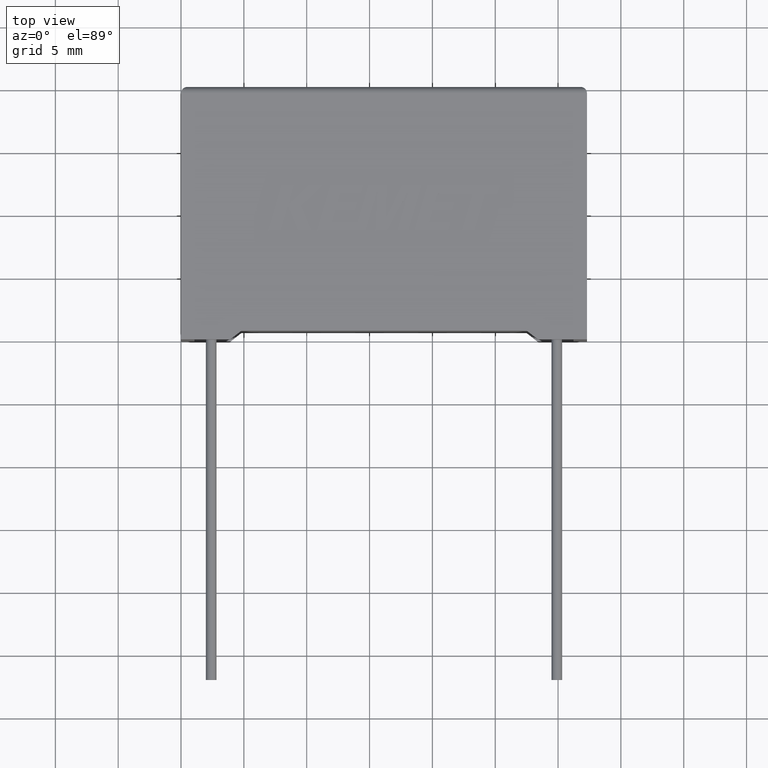
[diagram: clean part render]
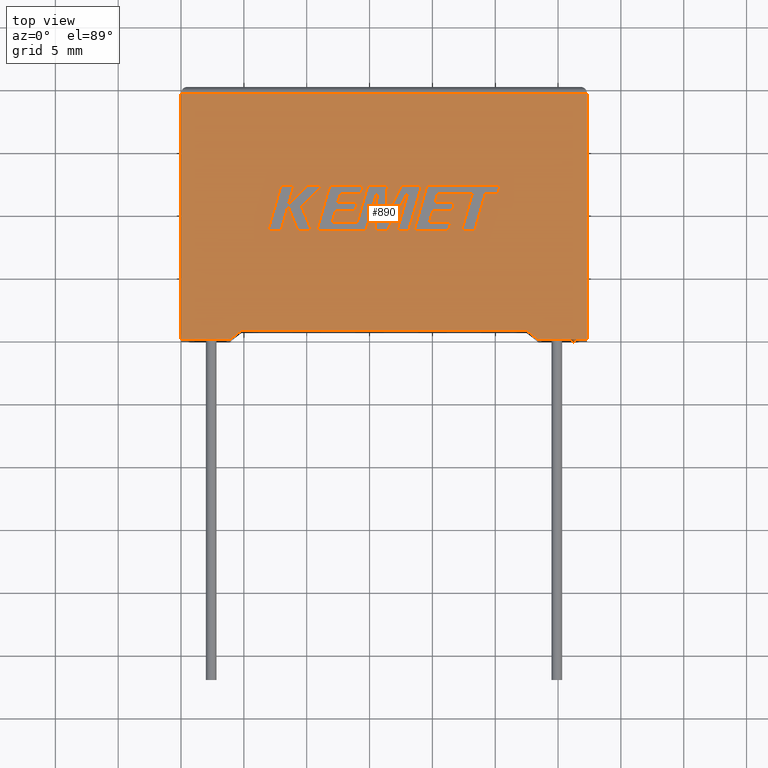
[diagram: same view with one face highlighted and labeled with its STEP entity id]
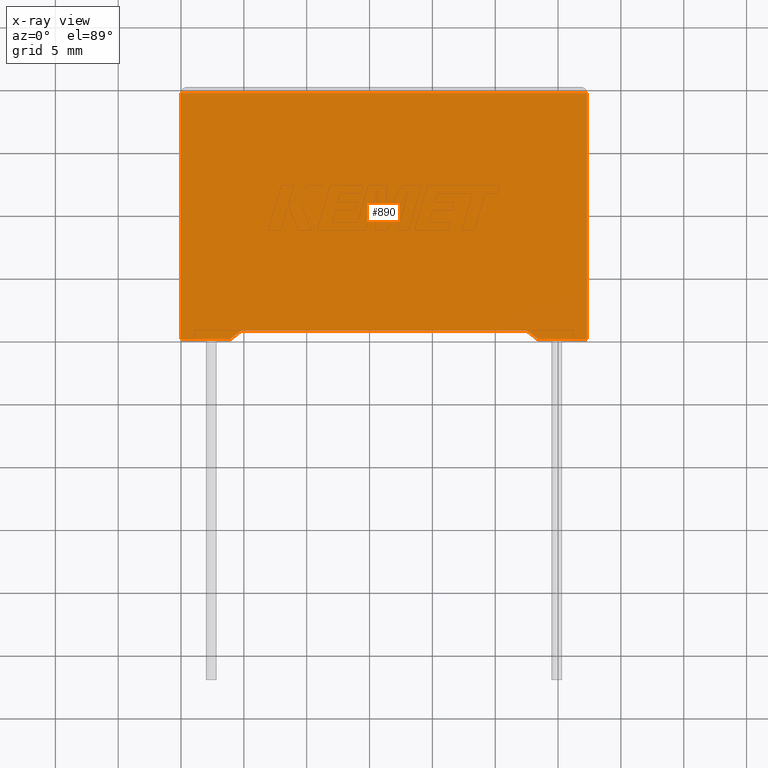
[diagram: x-ray of the same camera — body ghosted, the highlighted face saturated]
A machine part, top view. The second image highlights one B-rep face of the part: STEP entity #890.
The next image is the same camera in x-ray: the body ghosted, the highlighted face saturated — about 0% of this face is hidden behind the body in this view.
In plain terms, the highlighted planar face has unit normal (0, 0, -1).
Its self-contained STEP definition (entity closure, byte-faithful):
#103 = PLANE ( 'NONE',  #1256 ) ;
#169 = FACE_OUTER_BOUND ( 'NONE', #2371, .T. ) ;
#236 = VERTEX_POINT ( 'NONE', #3052 ) ;
#285 = VECTOR ( 'NONE', #1444, 1000.000000000000100 ) ;
#303 = EDGE_CURVE ( 'NONE', #2409, #1451, #2569, .T. ) ;
#311 = VECTOR ( 'NONE', #1547, 1000.000000000000000 ) ;
#329 = DIRECTION ( 'NONE',  ( 0.0000000000000000000, 0.0000000000000000000, -1.000000000000000000 ) ) ;
#359 = EDGE_CURVE ( 'NONE', #2127, #1276, #1443, .T. ) ;
#400 = DIRECTION ( 'NONE',  ( 0.0000000000000000000, 1.000000000000000000, 0.0000000000000000000 ) ) ;
#428 = EDGE_CURVE ( 'NONE', #1451, #1247, #1767, .T. ) ;
#444 = CARTESIAN_POINT ( 'NONE',  ( 28.39999999999999900, 2.388061258337336700E-016, 11.19999999999999900 ) ) ;
#618 = LINE ( 'NONE', #2611, #1004 ) ;
#697 = DIRECTION ( 'NONE',  ( -1.000000000000000000, 0.0000000000000000000, 0.0000000000000000000 ) ) ;
#754 = VECTOR ( 'NONE', #1028, 1000.000000000000000 ) ;
#890 = ADVANCED_FACE ( 'NONE', ( #169 ), #103, .F. ) ;
#966 = DIRECTION ( 'NONE',  ( 1.000000000000000000, 0.0000000000000000000, 0.0000000000000000000 ) ) ;
#983 = ORIENTED_EDGE ( 'NONE', *, *, #2393, .T. ) ;
#1004 = VECTOR ( 'NONE', #966, 1000.000000000000000 ) ;
#1028 = DIRECTION ( 'NONE',  ( -0.0000000000000000000, -1.000000000000000000, -0.0000000000000000000 ) ) ;
#1039 = CARTESIAN_POINT ( 'NONE',  ( 28.39999999999999900, 2.388061258337336700E-016, 11.19999999999999900 ) ) ;
#1042 = CARTESIAN_POINT ( 'NONE',  ( 0.0000000000000000000, 19.59999999999999800, 11.19999999999999900 ) ) ;
#1059 = LINE ( 'NONE', #2516, #2211 ) ;
#1139 = ORIENTED_EDGE ( 'NONE', *, *, #2005, .F. ) ;
#1172 = VERTEX_POINT ( 'NONE', #1342 ) ;
#1230 = CARTESIAN_POINT ( 'NONE',  ( 16.14999999999999900, 0.6930480000000010000, 11.19999999999999900 ) ) ;
#1247 = VERTEX_POINT ( 'NONE', #2277 ) ;
#1248 = EDGE_CURVE ( 'NONE', #2890, #236, #1059, .T. ) ;
#1256 = AXIS2_PLACEMENT_3D ( 'NONE', #1725, #329, #1965 ) ;
#1276 = VERTEX_POINT ( 'NONE', #444 ) ;
#1290 = VECTOR ( 'NONE', #2235, 1000.000000000000000 ) ;
#1342 = CARTESIAN_POINT ( 'NONE',  ( 4.796970999999998300, 0.6930479999999995500, 11.19999999999999900 ) ) ;
#1380 = CARTESIAN_POINT ( 'NONE',  ( 0.0000000000000000000, 19.59999999999999800, 11.19999999999999900 ) ) ;
#1443 = LINE ( 'NONE', #1039, #2303 ) ;
#1444 = DIRECTION ( 'NONE',  ( -0.7913131523958473200, -0.6114110686316911500, -0.0000000000000000000 ) ) ;
#1451 = VERTEX_POINT ( 'NONE', #1497 ) ;
#1497 = CARTESIAN_POINT ( 'NONE',  ( 0.0000000000000000000, 0.0000000000000000000, 11.19999999999999900 ) ) ;
#1533 = ORIENTED_EDGE ( 'NONE', *, *, #1963, .F. ) ;
#1539 = ORIENTED_EDGE ( 'NONE', *, *, #303, .T. ) ;
#1547 = DIRECTION ( 'NONE',  ( 1.000000000000000000, 0.0000000000000000000, 0.0000000000000000000 ) ) ;
#1725 = CARTESIAN_POINT ( 'NONE',  ( 0.0000000000000000000, 0.0000000000000000000, 11.19999999999999900 ) ) ;
#1767 = LINE ( 'NONE', #1793, #311 ) ;
#1793 = CARTESIAN_POINT ( 'NONE',  ( 0.0000000000000000000, 0.0000000000000000000, 11.19999999999999900 ) ) ;
#1963 = EDGE_CURVE ( 'NONE', #1172, #1247, #2306, .T. ) ;
#1965 = DIRECTION ( 'NONE',  ( -1.000000000000000000, 0.0000000000000000000, -0.0000000000000000000 ) ) ;
#2005 = EDGE_CURVE ( 'NONE', #2127, #1172, #2571, .T. ) ;
#2060 = CARTESIAN_POINT ( 'NONE',  ( 32.29999999999999700, 0.0000000000000000000, 11.19999999999999900 ) ) ;
#2127 = VERTEX_POINT ( 'NONE', #2967 ) ;
#2132 = ORIENTED_EDGE ( 'NONE', *, *, #1248, .T. ) ;
#2182 = ORIENTED_EDGE ( 'NONE', *, *, #428, .T. ) ;
#2204 = LINE ( 'NONE', #1380, #2282 ) ;
#2211 = VECTOR ( 'NONE', #400, 1000.000000000000000 ) ;
#2215 = ORIENTED_EDGE ( 'NONE', *, *, #2604, .T. ) ;
#2235 = DIRECTION ( 'NONE',  ( -1.000000000000000000, -1.241486148085375000E-016, 0.0000000000000000000 ) ) ;
#2277 = CARTESIAN_POINT ( 'NONE',  ( 3.899999999999998100, 2.388061258337336700E-016, 11.19999999999999900 ) ) ;
#2282 = VECTOR ( 'NONE', #697, 1000.000000000000000 ) ;
#2303 = VECTOR ( 'NONE', #2726, 1000.000000000000100 ) ;
#2306 = LINE ( 'NONE', #2424, #285 ) ;
#2371 = EDGE_LOOP ( 'NONE', ( #2132, #983, #1539, #2182, #1533, #1139, #2962, #2215 ) ) ;
#2393 = EDGE_CURVE ( 'NONE', #236, #2409, #2204, .T. ) ;
#2409 = VERTEX_POINT ( 'NONE', #1042 ) ;
#2424 = CARTESIAN_POINT ( 'NONE',  ( 3.899999999999998100, 2.388061258337336700E-016, 11.19999999999999900 ) ) ;
#2516 = CARTESIAN_POINT ( 'NONE',  ( 32.29999999999999700, 0.0000000000000000000, 11.19999999999999900 ) ) ;
#2569 = LINE ( 'NONE', #2934, #754 ) ;
#2571 = LINE ( 'NONE', #1230, #1290 ) ;
#2604 = EDGE_CURVE ( 'NONE', #1276, #2890, #618, .T. ) ;
#2611 = CARTESIAN_POINT ( 'NONE',  ( 0.0000000000000000000, 0.0000000000000000000, 11.19999999999999900 ) ) ;
#2726 = DIRECTION ( 'NONE',  ( 0.7913131523958473200, -0.6114110686316911500, -0.0000000000000000000 ) ) ;
#2890 = VERTEX_POINT ( 'NONE', #2060 ) ;
#2934 = CARTESIAN_POINT ( 'NONE',  ( 0.0000000000000000000, 0.0000000000000000000, 11.19999999999999900 ) ) ;
#2962 = ORIENTED_EDGE ( 'NONE', *, *, #359, .T. ) ;
#2967 = CARTESIAN_POINT ( 'NONE',  ( 27.50302899999999800, 0.6930479999999995500, 11.19999999999999900 ) ) ;
#3052 = CARTESIAN_POINT ( 'NONE',  ( 32.29999999999999700, 19.59999999999999800, 11.19999999999999900 ) ) ;